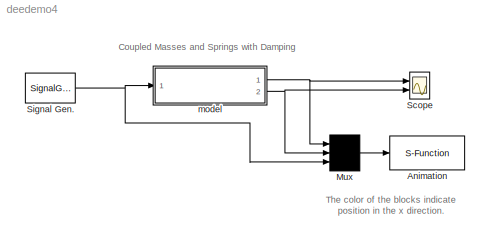
MODEL deedemo4
KIND model
CONFIG AbsTol = 1e-6
CONFIG FixedStep = auto
CONFIG MaxStep = auto
CONFIG PreLoadFcn = deedemi4
CONFIG RelTol = 1e-3
CONFIG Solver = ode45
CONFIG SolverMode = SingleTasking
CONFIG StartTime = 0.0
CONFIG StopTime = 159.9
BLOCK [S-Function] Animation
  FunctionName = dee4plt
  MaskDisplay = disp('Animation')
  MaskIconFrame = on
  MaskIconOpaque = on
  MaskIconRotate = none
  MaskIconUnits = autoscale
  OpenFcn = global Handles; Handles = dee4plti;
  Parameters = 1
  PortCounts = []
  Ports = [1, 0, 0, 0, 0]
  SFunctionModules = ''
BLOCK [Mux] Mux
  DisplayOption = none
  Inputs = 3
  Ports = [3, 1, 0, 0, 0]
BLOCK [Scope] Scope
  DataFormat = Matrix
  Decimation = 1
  Floating = off
  Grid = on
  LimitMaxRows = on
  MaxRows = 5000
  NumInputPorts = 2
  Ports = [2, 0, 0, 0, 0]
  SampleInput = off
  SampleTime = 0
  SaveName = ScopeData
  SaveToWorkspace = off
  TickLabels = on
  TimeRange = 60
  YMax = 5~5
  YMin = -5~-5
  ZoomMode = on
BLOCK [SignalGenerator] Signal Gen.
  Amplitude = 2.000000
  Frequency = 4.860000
  Units = rad/sec
  WaveForm = sine
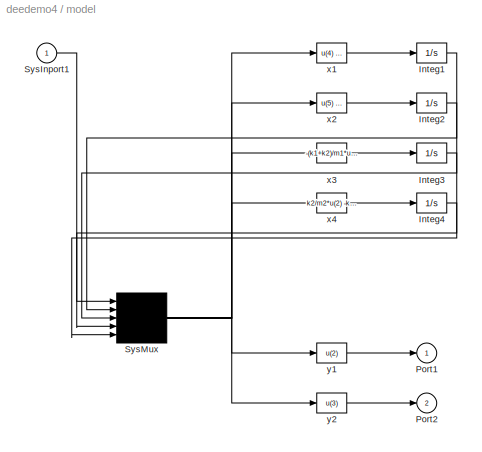
BLOCK [SubSystem] model
  MaskDisplay = disp('damped \\nmass/spring\\n  system')
  MaskIconFrame = on
  MaskIconOpaque = on
  MaskIconRotate = none
  MaskIconUnits = autoscale
  MaskType = Differential Equation Editor (DEE)
  OpenFcn = diffeqed
  Ports = [1, 2, 0, 0, 0]
  ShowPortLabels = on
BLOCK [Integrator] model/Integ1
  AbsoluteTolerance = auto
  ExternalReset = none
  InitialCondition = 0
  InitialConditionSource = internal
  LimitOutput = off
  LowerSaturationLimit = -inf
  Ports = [1, 1, 0, 0, 0]
  ShowSaturationPort = off
  ShowStatePort = off
  UpperSaturationLimit = inf
BLOCK [Integrator] model/Integ2
  AbsoluteTolerance = auto
  ExternalReset = none
  InitialCondition = 1.5
  InitialConditionSource = internal
  LimitOutput = off
  LowerSaturationLimit = -inf
  Ports = [1, 1, 0, 0, 0]
  ShowSaturationPort = off
  ShowStatePort = off
  UpperSaturationLimit = inf
BLOCK [Integrator] model/Integ3
  AbsoluteTolerance = auto
  ExternalReset = none
  InitialCondition = 1.5
  InitialConditionSource = internal
  LimitOutput = off
  LowerSaturationLimit = -inf
  Ports = [1, 1, 0, 0, 0]
  ShowSaturationPort = off
  ShowStatePort = off
  UpperSaturationLimit = inf
BLOCK [Integrator] model/Integ4
  AbsoluteTolerance = auto
  ExternalReset = none
  InitialCondition = 0
  InitialConditionSource = internal
  LimitOutput = off
  LowerSaturationLimit = -inf
  Ports = [1, 1, 0, 0, 0]
  ShowSaturationPort = off
  ShowStatePort = off
  UpperSaturationLimit = inf
BLOCK [Outport] model/Port1
  InitialOutput = 0
  OutputWhenDisabled = held
  Port = 1
BLOCK [Outport] model/Port2
  InitialOutput = 0
  OutputWhenDisabled = held
  Port = 2
BLOCK [Inport] model/SysInport1
  DataType = auto
  Interpolate = on
  Port = 1
  PortWidth = -1
  SampleTime = -1
  SignalType = auto
BLOCK [Mux] model/SysMux
  DisplayOption = none
  Inputs = 5
  Ports = [5, 1, 0, 0, 0]
BLOCK [Fcn] model/x1
  Expr = u(4)
BLOCK [Fcn] model/x2
  Expr = u(5)
BLOCK [Fcn] model/x3
  Expr = -(k1+k2)/m1*u(2)+k2/m1*u(3)-c1*u(4)
BLOCK [Fcn] model/x4
  Expr = k2/m2*u(2) -k2/m2*u(3)  -u(1)
BLOCK [Fcn] model/y1
  Expr = u(2)
BLOCK [Fcn] model/y2
  Expr = u(3)
LINE Mux:1 -> Animation:1
NET Signal Gen.:1 -> Mux:3, model:1
LINE model/Integ1:1 -> model/SysMux:2
LINE model/Integ2:1 -> model/SysMux:3
LINE model/Integ3:1 -> model/SysMux:4
LINE model/Integ4:1 -> model/SysMux:5
LINE model/SysInport1:1 -> model/SysMux:1
NET model/SysMux:1 -> model/x1:1, model/x2:1, model/x3:1, model/x4:1, model/y1:1, model/y2:1
LINE model/x1:1 -> model/Integ1:1
LINE model/x2:1 -> model/Integ2:1
LINE model/x3:1 -> model/Integ3:1
LINE model/x4:1 -> model/Integ4:1
LINE model/y1:1 -> model/Port1:1
LINE model/y2:1 -> model/Port2:1
NET model:1 -> Mux:1, Scope:1
NET model:2 -> Mux:2, Scope:2
note: NET lines group one-source signal fan-out (src -> all destinations, sorted); 1:1 wires keep LINE
